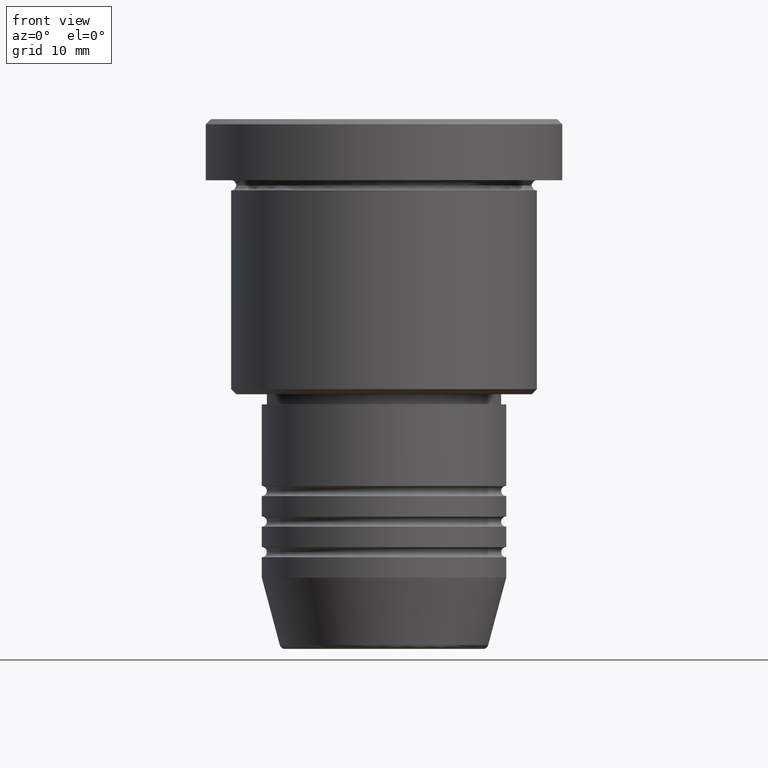
[diagram: clean part render]
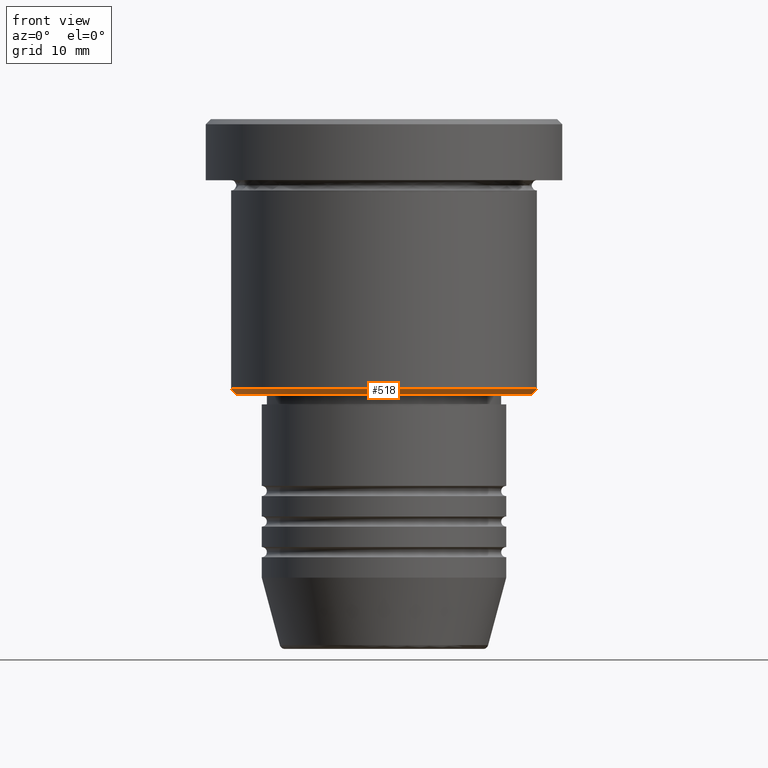
[diagram: same view with one face highlighted and labeled with its STEP entity id]
A machine part, front view. The second image highlights one B-rep face of the part: STEP entity #518.
In plain terms, the highlighted conical surface has half-angle 45 deg.
Its self-contained STEP definition (entity closure, byte-faithful):
#9 = EDGE_CURVE ( 'NONE', #733, #179, #963, .T. ) ;
#16 = DIRECTION ( 'NONE',  ( -1.000000000000000000, 0.000000000000000000, 0.000000000000000000 ) ) ;
#67 = LINE ( 'NONE', #609, #1115 ) ;
#110 = VECTOR ( 'NONE', #661, 1000.000000000000114 ) ;
#179 = VERTEX_POINT ( 'NONE', #319 ) ;
#319 = CARTESIAN_POINT ( 'NONE',  ( -14.49999999999997868, 1.806354028742344224E-15, -26.99999999999999645 ) ) ;
#353 = DIRECTION ( 'NONE',  ( -0.000000000000000000, -0.000000000000000000, 1.000000000000000000 ) ) ;
#379 = VERTEX_POINT ( 'NONE', #682 ) ;
#388 = LINE ( 'NONE', #857, #110 ) ;
#410 = EDGE_LOOP ( 'NONE', ( #476, #817, #841, #646 ) ) ;
#414 = VERTEX_POINT ( 'NONE', #1038 ) ;
#458 = AXIS2_PLACEMENT_3D ( 'NONE', #1167, #353, #712 ) ;
#476 = ORIENTED_EDGE ( 'NONE', *, *, #608, .F. ) ;
#513 = FACE_OUTER_BOUND ( 'NONE', #410, .T. ) ;
#518 = ADVANCED_FACE ( 'NONE', ( #513 ), #1138, .T. ) ;
#566 = AXIS2_PLACEMENT_3D ( 'NONE', #899, #692, #876 ) ;
#608 = EDGE_CURVE ( 'NONE', #179, #379, #67, .T. ) ;
#609 = CARTESIAN_POINT ( 'NONE',  ( -15.00000000000000000, 1.836970198721029589E-15, -26.49999999999998579 ) ) ;
#621 = CIRCLE ( 'NONE', #458, 15.00000000000000000 ) ;
#645 = EDGE_CURVE ( 'NONE', #379, #414, #621, .T. ) ;
#646 = ORIENTED_EDGE ( 'NONE', *, *, #645, .F. ) ;
#656 = CARTESIAN_POINT ( 'NONE',  ( 0.000000000000000000, 0.000000000000000000, -26.99999999999999645 ) ) ;
#661 = DIRECTION ( 'NONE',  ( 0.7071067811865549002, 0.000000000000000000, 0.7071067811865402453 ) ) ;
#672 = DIRECTION ( 'NONE',  ( 0.000000000000000000, 0.000000000000000000, -1.000000000000000000 ) ) ;
#682 = CARTESIAN_POINT ( 'NONE',  ( -15.00000000000000000, 1.836970198721029589E-15, -26.49999999999998579 ) ) ;
#692 = DIRECTION ( 'NONE',  ( -0.000000000000000000, -0.000000000000000000, 1.000000000000000000 ) ) ;
#712 = DIRECTION ( 'NONE',  ( -1.000000000000000000, 0.000000000000000000, 0.000000000000000000 ) ) ;
#733 = VERTEX_POINT ( 'NONE', #820 ) ;
#791 = AXIS2_PLACEMENT_3D ( 'NONE', #656, #672, #16 ) ;
#817 = ORIENTED_EDGE ( 'NONE', *, *, #9, .F. ) ;
#820 = CARTESIAN_POINT ( 'NONE',  ( 14.49999999999997868, 0.000000000000000000, -26.99999999999999645 ) ) ;
#841 = ORIENTED_EDGE ( 'NONE', *, *, #916, .T. ) ;
#857 = CARTESIAN_POINT ( 'NONE',  ( 15.00000000000000000, 0.000000000000000000, -26.49999999999998579 ) ) ;
#876 = DIRECTION ( 'NONE',  ( 1.000000000000000000, 0.000000000000000000, 0.000000000000000000 ) ) ;
#887 = DIRECTION ( 'NONE',  ( -0.7071067811865549002, 8.659560562355021605E-17, 0.7071067811865402453 ) ) ;
#899 = CARTESIAN_POINT ( 'NONE',  ( 0.000000000000000000, 0.000000000000000000, -26.49999999999998579 ) ) ;
#916 = EDGE_CURVE ( 'NONE', #733, #414, #388, .T. ) ;
#963 = CIRCLE ( 'NONE', #791, 14.49999999999997868 ) ;
#1038 = CARTESIAN_POINT ( 'NONE',  ( 15.00000000000000000, 0.000000000000000000, -26.49999999999998579 ) ) ;
#1115 = VECTOR ( 'NONE', #887, 1000.000000000000114 ) ;
#1138 = CONICAL_SURFACE ( 'NONE', #566, 15.00000000000000000, 0.7853981633974587151 ) ;
#1167 = CARTESIAN_POINT ( 'NONE',  ( 0.000000000000000000, 0.000000000000000000, -26.49999999999998579 ) ) ;